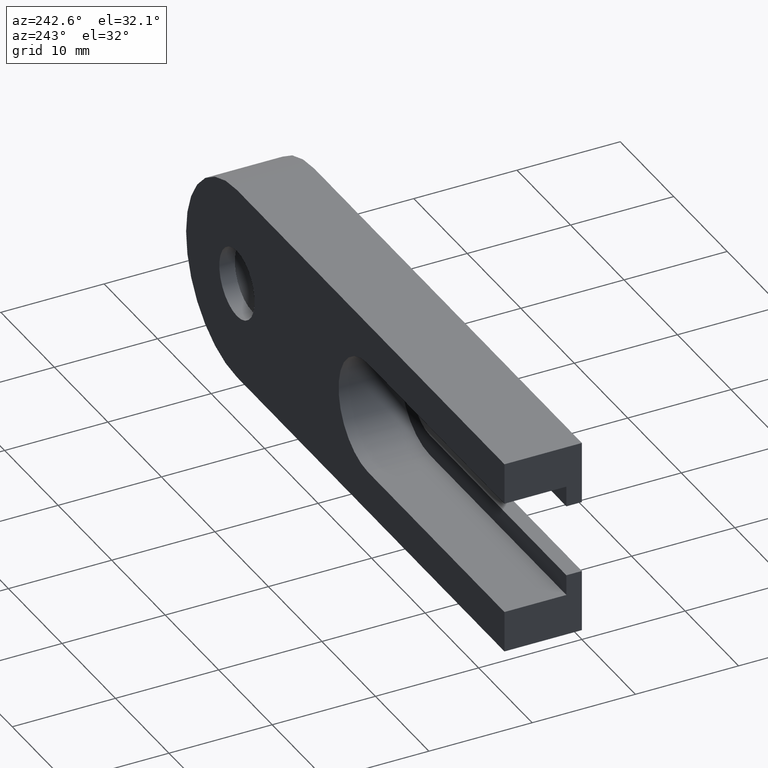
[diagram: clean part render]
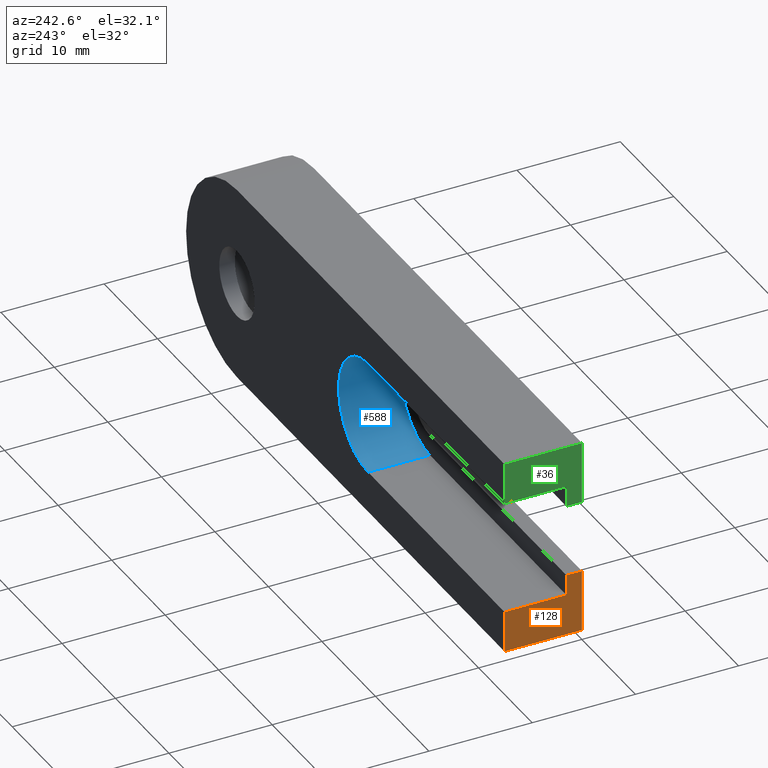
[diagram: same view with three faces highlighted in distinct colors, each labeled with its STEP entity id]
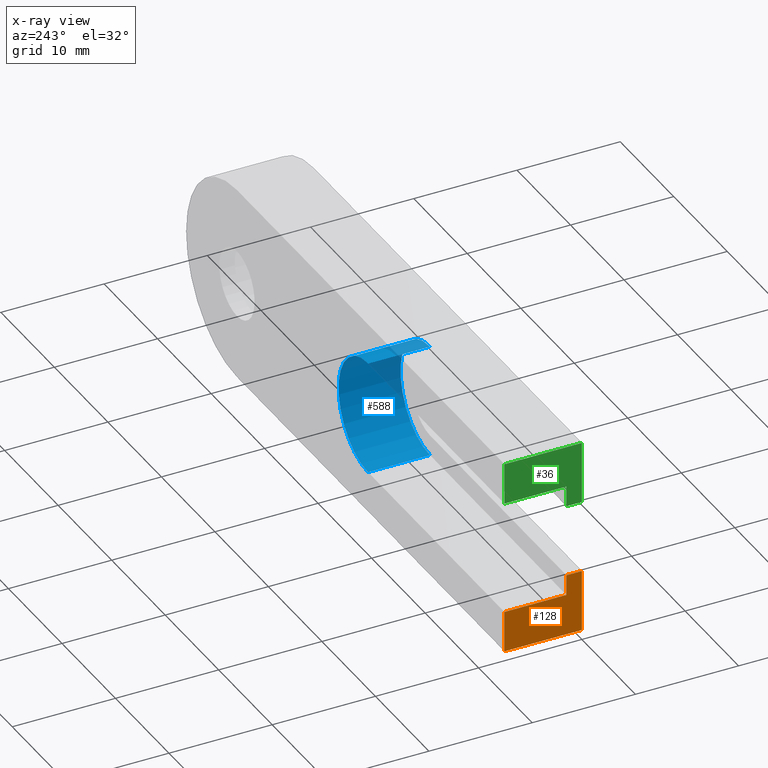
[diagram: x-ray of the same camera — body ghosted, the three highlighted faces saturated]
A machine part, auxiliary view with three faces highlighted in distinct colors.
The next image is the same camera in x-ray (body ghosted, the three faces saturated) — at least one of them is partly hidden behind the body in this view.
Their STEP definitions:

[orange] entity #128 — the highlighted planar face has unit normal (1, 0, 0).
#10 = ORIENTED_EDGE ( 'NONE', *, *, #412, .T. ) ;
#19 = EDGE_LOOP ( 'NONE', ( #536, #10, #553, #422, #135, #131 ) ) ;
#39 = CARTESIAN_POINT ( 'NONE',  ( -49.99999999999999300, 7.500000000000000000, -9.500000000000000000 ) ) ;
#87 = LINE ( 'NONE', #546, #382 ) ;
#112 = EDGE_CURVE ( 'NONE', #178, #415, #239, .T. ) ;
#117 = VERTEX_POINT ( 'NONE', #232 ) ;
#128 = ADVANCED_FACE ( 'NONE', ( #524 ), #543, .F. ) ;
#131 = ORIENTED_EDGE ( 'NONE', *, *, #266, .T. ) ;
#133 = LINE ( 'NONE', #196, #582 ) ;
#135 = ORIENTED_EDGE ( 'NONE', *, *, #112, .T. ) ;
#149 = VERTEX_POINT ( 'NONE', #632 ) ;
#168 = LINE ( 'NONE', #309, #565 ) ;
#178 = VERTEX_POINT ( 'NONE', #583 ) ;
#187 = VECTOR ( 'NONE', #541, 1000.000000000000000 ) ;
#196 = CARTESIAN_POINT ( 'NONE',  ( -49.99999999999999300, 0.0000000000000000000, -3.499999999999993800 ) ) ;
#232 = CARTESIAN_POINT ( 'NONE',  ( -49.99999999999999300, 1.499999999999999600, -5.499999999999993800 ) ) ;
#239 = LINE ( 'NONE', #378, #245 ) ;
#245 = VECTOR ( 'NONE', #532, 1000.000000000000000 ) ;
#260 = CARTESIAN_POINT ( 'NONE',  ( -49.99999999999999300, 1.499999999999999600, -5.499999999999993800 ) ) ;
#266 = EDGE_CURVE ( 'NONE', #415, #149, #133, .T. ) ;
#287 = DIRECTION ( 'NONE',  ( 1.000000000000000000, 0.0000000000000000000, 0.0000000000000000000 ) ) ;
#292 = DIRECTION ( 'NONE',  ( -0.0000000000000000000, -0.0000000000000000000, 1.000000000000000000 ) ) ;
#297 = EDGE_CURVE ( 'NONE', #432, #178, #87, .T. ) ;
#305 = VERTEX_POINT ( 'NONE', #510 ) ;
#309 = CARTESIAN_POINT ( 'NONE',  ( -49.99999999999999300, 1.499999999999999600, -3.499999999999993800 ) ) ;
#330 = DIRECTION ( 'NONE',  ( 0.0000000000000000000, 0.0000000000000000000, -1.000000000000000000 ) ) ;
#342 = LINE ( 'NONE', #39, #187 ) ;
#378 = CARTESIAN_POINT ( 'NONE',  ( -49.99999999999999300, 0.0000000000000000000, -9.500000000000000000 ) ) ;
#382 = VECTOR ( 'NONE', #505, 1000.000000000000000 ) ;
#412 = EDGE_CURVE ( 'NONE', #117, #305, #597, .T. ) ;
#415 = VERTEX_POINT ( 'NONE', #607 ) ;
#422 = ORIENTED_EDGE ( 'NONE', *, *, #297, .T. ) ;
#432 = VERTEX_POINT ( 'NONE', #464 ) ;
#464 = CARTESIAN_POINT ( 'NONE',  ( -49.99999999999999300, 7.500000000000000000, -9.500000000000000000 ) ) ;
#467 = AXIS2_PLACEMENT_3D ( 'NONE', #630, #287, #330 ) ;
#468 = DIRECTION ( 'NONE',  ( -0.0000000000000000000, 1.000000000000000000, -0.0000000000000000000 ) ) ;
#493 = EDGE_CURVE ( 'NONE', #432, #305, #342, .T. ) ;
#505 = DIRECTION ( 'NONE',  ( -0.0000000000000000000, -1.000000000000000000, -0.0000000000000000000 ) ) ;
#510 = CARTESIAN_POINT ( 'NONE',  ( -49.99999999999999300, 7.500000000000000000, -5.499999999999993800 ) ) ;
#524 = FACE_OUTER_BOUND ( 'NONE', #19, .T. ) ;
#532 = DIRECTION ( 'NONE',  ( 0.0000000000000000000, 0.0000000000000000000, 1.000000000000000000 ) ) ;
#536 = ORIENTED_EDGE ( 'NONE', *, *, #613, .F. ) ;
#541 = DIRECTION ( 'NONE',  ( 0.0000000000000000000, 0.0000000000000000000, 1.000000000000000000 ) ) ;
#543 = PLANE ( 'NONE',  #467 ) ;
#546 = CARTESIAN_POINT ( 'NONE',  ( -49.99999999999999300, 7.500000000000000000, -9.500000000000000000 ) ) ;
#553 = ORIENTED_EDGE ( 'NONE', *, *, #493, .F. ) ;
#565 = VECTOR ( 'NONE', #292, 1000.000000000000000 ) ;
#582 = VECTOR ( 'NONE', #600, 1000.000000000000000 ) ;
#583 = CARTESIAN_POINT ( 'NONE',  ( -49.99999999999999300, 0.0000000000000000000, -9.500000000000000000 ) ) ;
#597 = LINE ( 'NONE', #260, #646 ) ;
#600 = DIRECTION ( 'NONE',  ( -0.0000000000000000000, 1.000000000000000000, -0.0000000000000000000 ) ) ;
#607 = CARTESIAN_POINT ( 'NONE',  ( -49.99999999999999300, 0.0000000000000000000, -3.499999999999993800 ) ) ;
#613 = EDGE_CURVE ( 'NONE', #117, #149, #168, .T. ) ;
#630 = CARTESIAN_POINT ( 'NONE',  ( -49.99999999999999300, 7.500000000000000000, -9.500000000000000000 ) ) ;
#632 = CARTESIAN_POINT ( 'NONE',  ( -49.99999999999999300, 1.499999999999999600, -3.499999999999993800 ) ) ;
#646 = VECTOR ( 'NONE', #468, 1000.000000000000000 ) ;

[blue] entity #588 — the highlighted cylindrical surface (partial cylindrical patch) has radius 5.5 mm, axis along (-0, 1, -0).
#37 = ORIENTED_EDGE ( 'NONE', *, *, #252, .T. ) ;
#47 = ORIENTED_EDGE ( 'NONE', *, *, #163, .T. ) ;
#55 = CARTESIAN_POINT ( 'NONE',  ( -24.49999999999999600, 1.499999999999999600, -5.500000000000000000 ) ) ;
#69 = AXIS2_PLACEMENT_3D ( 'NONE', #346, #281, #189 ) ;
#75 = CARTESIAN_POINT ( 'NONE',  ( -24.49999999999999600, 1.499999999999999600, 5.500000000000006200 ) ) ;
#76 = CYLINDRICAL_SURFACE ( 'NONE', #606, 5.500000000000003600 ) ;
#124 = EDGE_CURVE ( 'NONE', #611, #306, #295, .T. ) ;
#129 = AXIS2_PLACEMENT_3D ( 'NONE', #181, #586, #383 ) ;
#146 = CARTESIAN_POINT ( 'NONE',  ( -24.49999999999999600, 1.499999999999999600, 3.469446951953614200E-015 ) ) ;
#157 = LINE ( 'NONE', #55, #530 ) ;
#163 = EDGE_CURVE ( 'NONE', #469, #490, #540, .T. ) ;
#181 = CARTESIAN_POINT ( 'NONE',  ( -24.49999999999999600, 7.500000000000000000, 3.469446951953614200E-015 ) ) ;
#189 = DIRECTION ( 'NONE',  ( 0.0000000000000000000, 0.0000000000000000000, 1.000000000000000000 ) ) ;
#214 = FACE_OUTER_BOUND ( 'NONE', #308, .T. ) ;
#252 = EDGE_CURVE ( 'NONE', #611, #469, #492, .T. ) ;
#280 = VECTOR ( 'NONE', #298, 1000.000000000000000 ) ;
#281 = DIRECTION ( 'NONE',  ( 0.0000000000000000000, 1.000000000000000000, 0.0000000000000000000 ) ) ;
#295 = CIRCLE ( 'NONE', #69, 5.500000000000003600 ) ;
#298 = DIRECTION ( 'NONE',  ( -0.0000000000000000000, 1.000000000000000000, -0.0000000000000000000 ) ) ;
#299 = CARTESIAN_POINT ( 'NONE',  ( -24.49999999999999600, 7.500000000000000000, -5.500000000000000000 ) ) ;
#306 = VERTEX_POINT ( 'NONE', #595 ) ;
#308 = EDGE_LOOP ( 'NONE', ( #47, #357, #439, #37 ) ) ;
#314 = EDGE_CURVE ( 'NONE', #306, #490, #157, .T. ) ;
#346 = CARTESIAN_POINT ( 'NONE',  ( -24.49999999999999600, 1.499999999999999600, 3.469446951953614200E-015 ) ) ;
#357 = ORIENTED_EDGE ( 'NONE', *, *, #314, .F. ) ;
#383 = DIRECTION ( 'NONE',  ( 0.0000000000000000000, 0.0000000000000000000, 1.000000000000000000 ) ) ;
#397 = DIRECTION ( 'NONE',  ( -0.0000000000000000000, 1.000000000000000000, -0.0000000000000000000 ) ) ;
#439 = ORIENTED_EDGE ( 'NONE', *, *, #124, .F. ) ;
#466 = DIRECTION ( 'NONE',  ( -0.0000000000000000000, 1.000000000000000000, -0.0000000000000000000 ) ) ;
#469 = VERTEX_POINT ( 'NONE', #567 ) ;
#490 = VERTEX_POINT ( 'NONE', #299 ) ;
#492 = LINE ( 'NONE', #596, #280 ) ;
#509 = DIRECTION ( 'NONE',  ( 0.0000000000000000000, 0.0000000000000000000, 1.000000000000000000 ) ) ;
#530 = VECTOR ( 'NONE', #397, 1000.000000000000000 ) ;
#540 = CIRCLE ( 'NONE', #129, 5.500000000000003600 ) ;
#567 = CARTESIAN_POINT ( 'NONE',  ( -24.49999999999999600, 7.500000000000000000, 5.500000000000006200 ) ) ;
#586 = DIRECTION ( 'NONE',  ( 0.0000000000000000000, 1.000000000000000000, 0.0000000000000000000 ) ) ;
#588 = ADVANCED_FACE ( 'NONE', ( #214 ), #76, .F. ) ;
#595 = CARTESIAN_POINT ( 'NONE',  ( -24.49999999999999600, 1.499999999999999600, -5.500000000000000000 ) ) ;
#596 = CARTESIAN_POINT ( 'NONE',  ( -24.49999999999999600, 1.499999999999999600, 5.500000000000006200 ) ) ;
#606 = AXIS2_PLACEMENT_3D ( 'NONE', #146, #466, #509 ) ;
#611 = VERTEX_POINT ( 'NONE', #75 ) ;

[green] entity #36 — the highlighted planar face has unit normal (1, 0, 0).
#2 = EDGE_CURVE ( 'NONE', #190, #643, #219, .T. ) ;
#3 = VERTEX_POINT ( 'NONE', #212 ) ;
#32 = LINE ( 'NONE', #106, #437 ) ;
#36 = ADVANCED_FACE ( 'NONE', ( #68 ), #107, .F. ) ;
#41 = VECTOR ( 'NONE', #406, 1000.000000000000000 ) ;
#45 = DIRECTION ( 'NONE',  ( -0.0000000000000000000, 1.000000000000000000, -0.0000000000000000000 ) ) ;
#65 = DIRECTION ( 'NONE',  ( 1.000000000000000000, 0.0000000000000000000, 0.0000000000000000000 ) ) ;
#68 = FACE_OUTER_BOUND ( 'NONE', #286, .T. ) ;
#71 = EDGE_CURVE ( 'NONE', #345, #138, #271, .T. ) ;
#81 = VECTOR ( 'NONE', #554, 1000.000000000000000 ) ;
#98 = CARTESIAN_POINT ( 'NONE',  ( -49.99999999999999300, 0.0000000000000000000, 9.500000000000000000 ) ) ;
#103 = CARTESIAN_POINT ( 'NONE',  ( -49.99999999999999300, 1.499999999999999600, 3.500000000000006200 ) ) ;
#106 = CARTESIAN_POINT ( 'NONE',  ( -49.99999999999999300, 7.500000000000000000, 9.500000000000000000 ) ) ;
#107 = PLANE ( 'NONE',  #246 ) ;
#110 = DIRECTION ( 'NONE',  ( 0.0000000000000000000, 0.0000000000000000000, -1.000000000000000000 ) ) ;
#115 = CARTESIAN_POINT ( 'NONE',  ( -49.99999999999999300, 7.500000000000000000, -9.500000000000000000 ) ) ;
#122 = LINE ( 'NONE', #393, #182 ) ;
#138 = VERTEX_POINT ( 'NONE', #332 ) ;
#147 = ORIENTED_EDGE ( 'NONE', *, *, #502, .F. ) ;
#152 = CARTESIAN_POINT ( 'NONE',  ( -49.99999999999999300, 0.0000000000000000000, -9.500000000000000000 ) ) ;
#182 = VECTOR ( 'NONE', #45, 1000.000000000000000 ) ;
#190 = VERTEX_POINT ( 'NONE', #395 ) ;
#201 = DIRECTION ( 'NONE',  ( -0.0000000000000000000, -1.000000000000000000, -0.0000000000000000000 ) ) ;
#208 = CARTESIAN_POINT ( 'NONE',  ( -49.99999999999999300, 7.500000000000000000, 5.500000000000006200 ) ) ;
#212 = CARTESIAN_POINT ( 'NONE',  ( -49.99999999999999300, 1.499999999999999600, 5.500000000000006200 ) ) ;
#219 = LINE ( 'NONE', #152, #81 ) ;
#226 = LINE ( 'NONE', #539, #350 ) ;
#246 = AXIS2_PLACEMENT_3D ( 'NONE', #369, #65, #110 ) ;
#271 = LINE ( 'NONE', #115, #360 ) ;
#279 = LINE ( 'NONE', #103, #41 ) ;
#286 = EDGE_LOOP ( 'NONE', ( #290, #147, #391, #477, #333, #592 ) ) ;
#290 = ORIENTED_EDGE ( 'NONE', *, *, #71, .F. ) ;
#326 = VERTEX_POINT ( 'NONE', #401 ) ;
#328 = DIRECTION ( 'NONE',  ( 0.0000000000000000000, 0.0000000000000000000, 1.000000000000000000 ) ) ;
#332 = CARTESIAN_POINT ( 'NONE',  ( -49.99999999999999300, 7.500000000000000000, 9.500000000000000000 ) ) ;
#333 = ORIENTED_EDGE ( 'NONE', *, *, #2, .T. ) ;
#345 = VERTEX_POINT ( 'NONE', #208 ) ;
#350 = VECTOR ( 'NONE', #444, 1000.000000000000000 ) ;
#360 = VECTOR ( 'NONE', #328, 1000.000000000000000 ) ;
#369 = CARTESIAN_POINT ( 'NONE',  ( -49.99999999999999300, 7.500000000000000000, -9.500000000000000000 ) ) ;
#391 = ORIENTED_EDGE ( 'NONE', *, *, #578, .F. ) ;
#393 = CARTESIAN_POINT ( 'NONE',  ( -49.99999999999999300, 1.499999999999999600, 5.500000000000006200 ) ) ;
#395 = CARTESIAN_POINT ( 'NONE',  ( -49.99999999999999300, 0.0000000000000000000, 3.500000000000006200 ) ) ;
#401 = CARTESIAN_POINT ( 'NONE',  ( -49.99999999999999300, 1.499999999999999600, 3.500000000000006200 ) ) ;
#406 = DIRECTION ( 'NONE',  ( 0.0000000000000000000, 0.0000000000000000000, 1.000000000000000000 ) ) ;
#437 = VECTOR ( 'NONE', #201, 1000.000000000000000 ) ;
#444 = DIRECTION ( 'NONE',  ( -0.0000000000000000000, 1.000000000000000000, -0.0000000000000000000 ) ) ;
#477 = ORIENTED_EDGE ( 'NONE', *, *, #551, .F. ) ;
#502 = EDGE_CURVE ( 'NONE', #3, #345, #122, .T. ) ;
#539 = CARTESIAN_POINT ( 'NONE',  ( -49.99999999999999300, 0.0000000000000000000, 3.500000000000006200 ) ) ;
#551 = EDGE_CURVE ( 'NONE', #190, #326, #226, .T. ) ;
#554 = DIRECTION ( 'NONE',  ( 0.0000000000000000000, 0.0000000000000000000, 1.000000000000000000 ) ) ;
#578 = EDGE_CURVE ( 'NONE', #326, #3, #279, .T. ) ;
#592 = ORIENTED_EDGE ( 'NONE', *, *, #647, .F. ) ;
#643 = VERTEX_POINT ( 'NONE', #98 ) ;
#647 = EDGE_CURVE ( 'NONE', #138, #643, #32, .T. ) ;